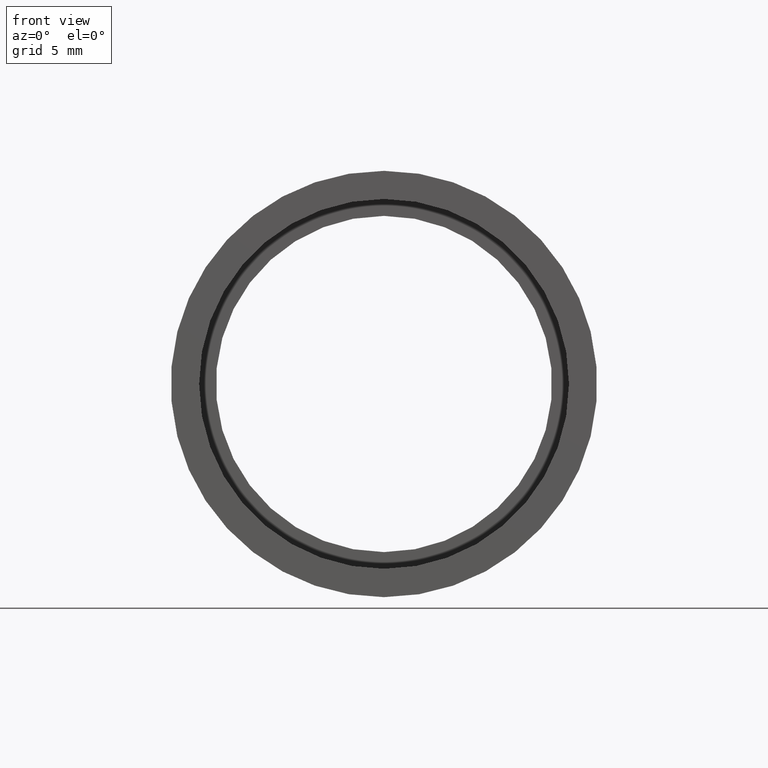
[diagram: clean part render]
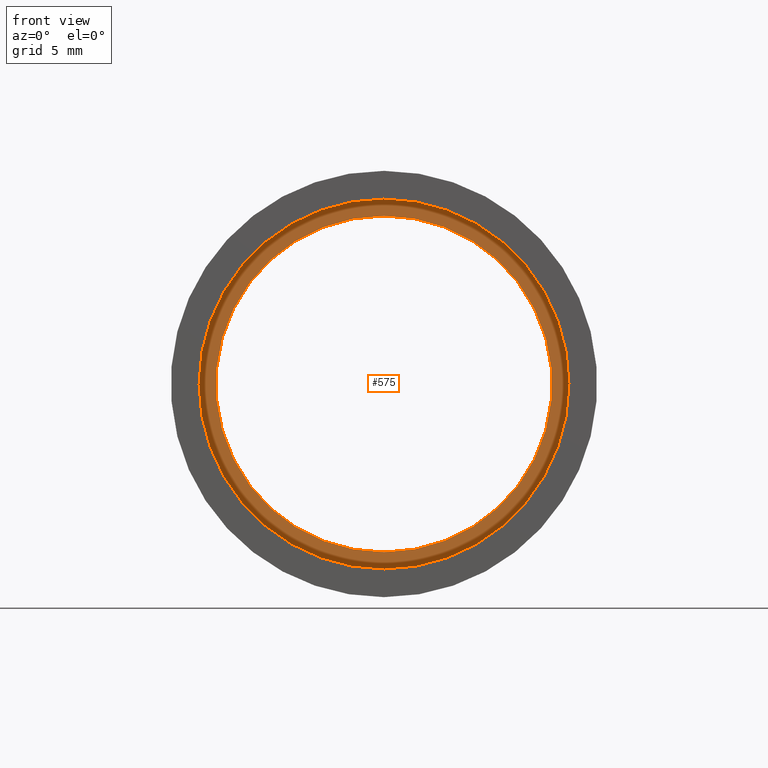
[diagram: same view with one face highlighted and labeled with its STEP entity id]
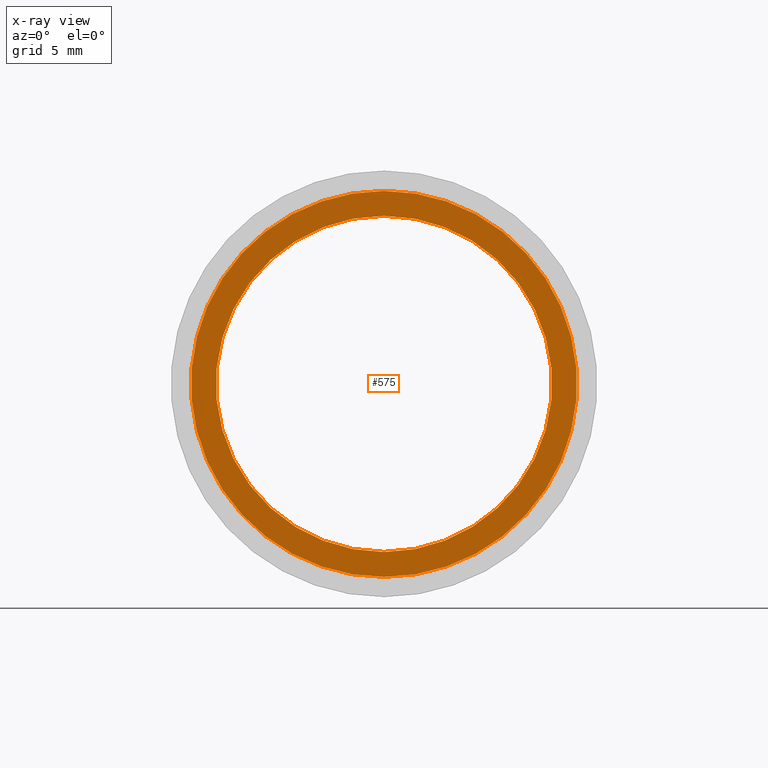
[diagram: x-ray of the same camera — body ghosted, the highlighted face saturated]
A machine part, front view. The second image highlights one B-rep face of the part: STEP entity #575.
The next image is the same camera in x-ray: the body ghosted, the highlighted face saturated — about 0% of this face is hidden behind the body in this view.
In plain terms, the highlighted planar face has unit normal (-0, 1, 0).
Its self-contained STEP definition (entity closure, byte-faithful):
#8 = CARTESIAN_POINT ( 'NONE',  ( 0.0000000000000000000, 5.499999999999976900, 12.50000000000002000 ) ) ;
#11 = DIRECTION ( 'NONE',  ( 0.0000000000000000000, 0.0000000000000000000, 1.000000000000000000 ) ) ;
#16 = CARTESIAN_POINT ( 'NONE',  ( 1.757368156776454300E-015, 5.499999999999976900, -14.35000000000001900 ) ) ;
#29 = DIRECTION ( 'NONE',  ( 0.0000000000000000000, 0.0000000000000000000, 1.000000000000000000 ) ) ;
#34 = CIRCLE ( 'NONE', #292, 14.35000000000001900 ) ;
#44 = AXIS2_PLACEMENT_3D ( 'NONE', #168, #312, #63 ) ;
#47 = CIRCLE ( 'NONE', #130, 14.35000000000001900 ) ;
#51 = ORIENTED_EDGE ( 'NONE', *, *, #617, .F. ) ;
#54 = CARTESIAN_POINT ( 'NONE',  ( 0.0000000000000000000, 5.499999999999976900, 0.0000000000000000000 ) ) ;
#63 = DIRECTION ( 'NONE',  ( 0.0000000000000000000, 0.0000000000000000000, 1.000000000000000000 ) ) ;
#111 = VERTEX_POINT ( 'NONE', #599 ) ;
#130 = AXIS2_PLACEMENT_3D ( 'NONE', #54, #204, #11 ) ;
#146 = EDGE_CURVE ( 'NONE', #550, #111, #526, .T. ) ;
#168 = CARTESIAN_POINT ( 'NONE',  ( 0.0000000000000000000, 5.499999999999976900, 0.0000000000000000000 ) ) ;
#169 = FACE_BOUND ( 'NONE', #235, .T. ) ;
#171 = CARTESIAN_POINT ( 'NONE',  ( 0.0000000000000000000, 5.499999999999976900, 0.0000000000000000000 ) ) ;
#180 = EDGE_CURVE ( 'NONE', #615, #196, #34, .T. ) ;
#182 = ORIENTED_EDGE ( 'NONE', *, *, #299, .T. ) ;
#185 = EDGE_LOOP ( 'NONE', ( #193, #51 ) ) ;
#188 = FACE_OUTER_BOUND ( 'NONE', #185, .T. ) ;
#193 = ORIENTED_EDGE ( 'NONE', *, *, #180, .F. ) ;
#196 = VERTEX_POINT ( 'NONE', #16 ) ;
#204 = DIRECTION ( 'NONE',  ( -0.0000000000000000000, 1.000000000000000000, -0.0000000000000000000 ) ) ;
#235 = EDGE_LOOP ( 'NONE', ( #239, #182 ) ) ;
#239 = ORIENTED_EDGE ( 'NONE', *, *, #146, .T. ) ;
#292 = AXIS2_PLACEMENT_3D ( 'NONE', #171, #409, #29 ) ;
#299 = EDGE_CURVE ( 'NONE', #111, #550, #368, .T. ) ;
#312 = DIRECTION ( 'NONE',  ( -0.0000000000000000000, 1.000000000000000000, -0.0000000000000000000 ) ) ;
#368 = CIRCLE ( 'NONE', #458, 12.50000000000002000 ) ;
#375 = PLANE ( 'NONE',  #563 ) ;
#376 = DIRECTION ( 'NONE',  ( -0.0000000000000000000, 1.000000000000000000, 0.0000000000000000000 ) ) ;
#409 = DIRECTION ( 'NONE',  ( -0.0000000000000000000, 1.000000000000000000, -0.0000000000000000000 ) ) ;
#425 = DIRECTION ( 'NONE',  ( 0.0000000000000000000, 0.0000000000000000000, 1.000000000000000000 ) ) ;
#449 = CARTESIAN_POINT ( 'NONE',  ( 0.0000000000000000000, 5.499999999999976900, 14.35000000000001900 ) ) ;
#458 = AXIS2_PLACEMENT_3D ( 'NONE', #556, #566, #562 ) ;
#512 = CARTESIAN_POINT ( 'NONE',  ( 12.50000000000002000, 5.499999999999984000, 0.0000000000000000000 ) ) ;
#526 = CIRCLE ( 'NONE', #44, 12.50000000000002000 ) ;
#550 = VERTEX_POINT ( 'NONE', #8 ) ;
#556 = CARTESIAN_POINT ( 'NONE',  ( 0.0000000000000000000, 5.499999999999976900, 0.0000000000000000000 ) ) ;
#562 = DIRECTION ( 'NONE',  ( 0.0000000000000000000, 0.0000000000000000000, 1.000000000000000000 ) ) ;
#563 = AXIS2_PLACEMENT_3D ( 'NONE', #512, #376, #425 ) ;
#566 = DIRECTION ( 'NONE',  ( -0.0000000000000000000, 1.000000000000000000, -0.0000000000000000000 ) ) ;
#575 = ADVANCED_FACE ( 'NONE', ( #188, #169 ), #375, .F. ) ;
#599 = CARTESIAN_POINT ( 'NONE',  ( 1.530808498934193900E-015, 5.499999999999976900, -12.50000000000002000 ) ) ;
#615 = VERTEX_POINT ( 'NONE', #449 ) ;
#617 = EDGE_CURVE ( 'NONE', #196, #615, #47, .T. ) ;